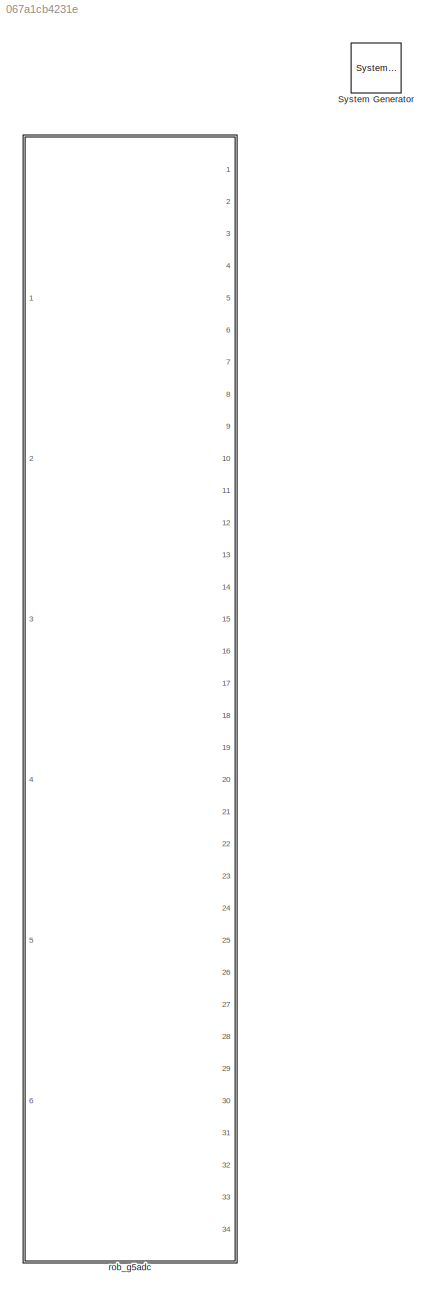
MODEL slx_067a1cb4231e
KIND model
BLOCK [Reference]  System Generator  REF=xbsIndex_r4/ System Generator
  AttributesFormatString = System\nGenerator
  Impl_file = ISE Defaults
  Ports = []
  SourceBlock = xbsIndex_r4/ System Generator
  SourceType = Xilinx System Generator Block
  Synth_file = XST Defaults
  Tag = genX
  UserDataPersistent = on
  block_type = sysgen
  clock_wrapper = Clock Enables
  core_generation = According to Block Masks
  dbl_ovrd = According to Block Masks
  dcm_input_clock_period = 10
  deprecated_control = off
  directory = ./netlist
  eval_field = 0
  has_advanced_control = 0
  incr_netlist = off
  infoedit = System Generator
  package = fbg676
  part = xc7k325t
  proj_type = Project Navigator
  run_coregen = off
  sg_icon_stat = 50,50,0,0,token,white,0,58c5b5770fe5f7c311f53dbc6e73f0f6,right,,[ ],[ ]
  sg_mask_display = fprintf('','COMMENT: begin icon graphics');\npatch([0 50 50 0 0 ],[0 0 50 50 0 ],[1 1 1 ]);\npatch([1.6375 16.81 27.31 37.81 48.31 27.31 12.1375 1.6375 ],[36.655 36.655 47.155 36.655 47.155 47.155 47.155 36.655 ],[0.933333 0.203922 0.141176 ]);\npatch([12.1375 27.31 16.81 1.6375 12.1375 ],[26.155 26.155 36.655 36.655 26.155 ],[0.698039 0.0313725 0.219608 ]);\npatch([1.6375 16.81 27.31 12.1375 1.6375 ]...<+327ch>
  sggui_pos = -1,-1,-1,-1
  simulink_period = 1
  speed = -3
  synthesis_tool = XST
  sysclk_period = 10
  testbench = off
  trim_vbits = Everywhere in SubSystem
  xilinxfamily = Kintex7
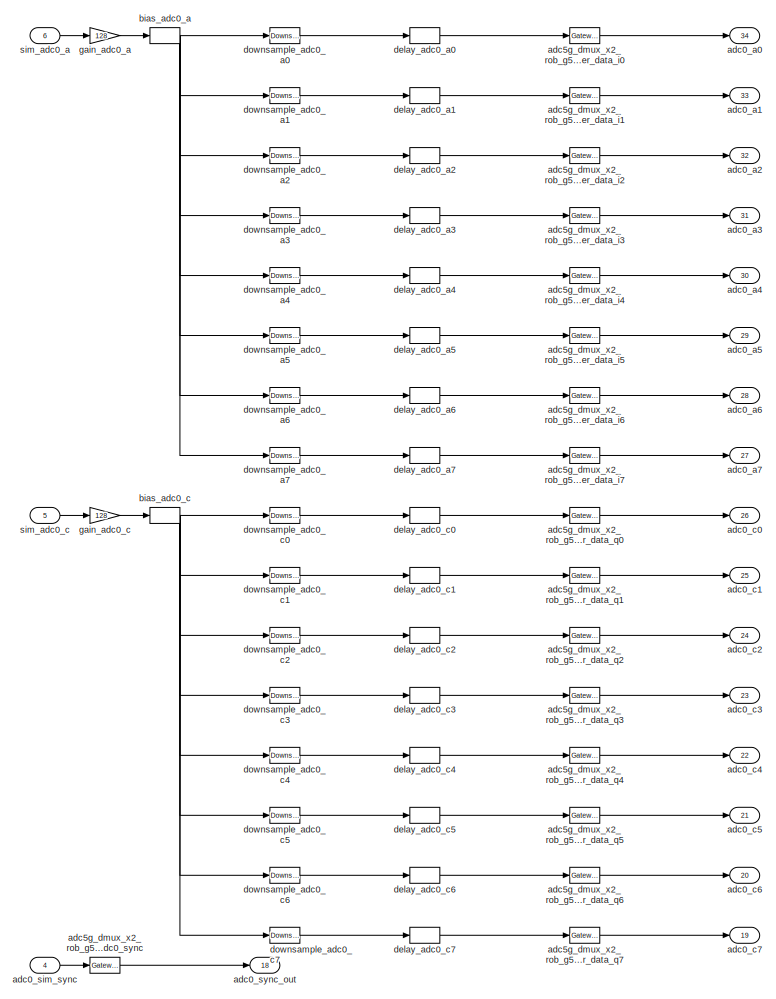
[diagram: rob_g5adc - part 1/2, full width, top band]
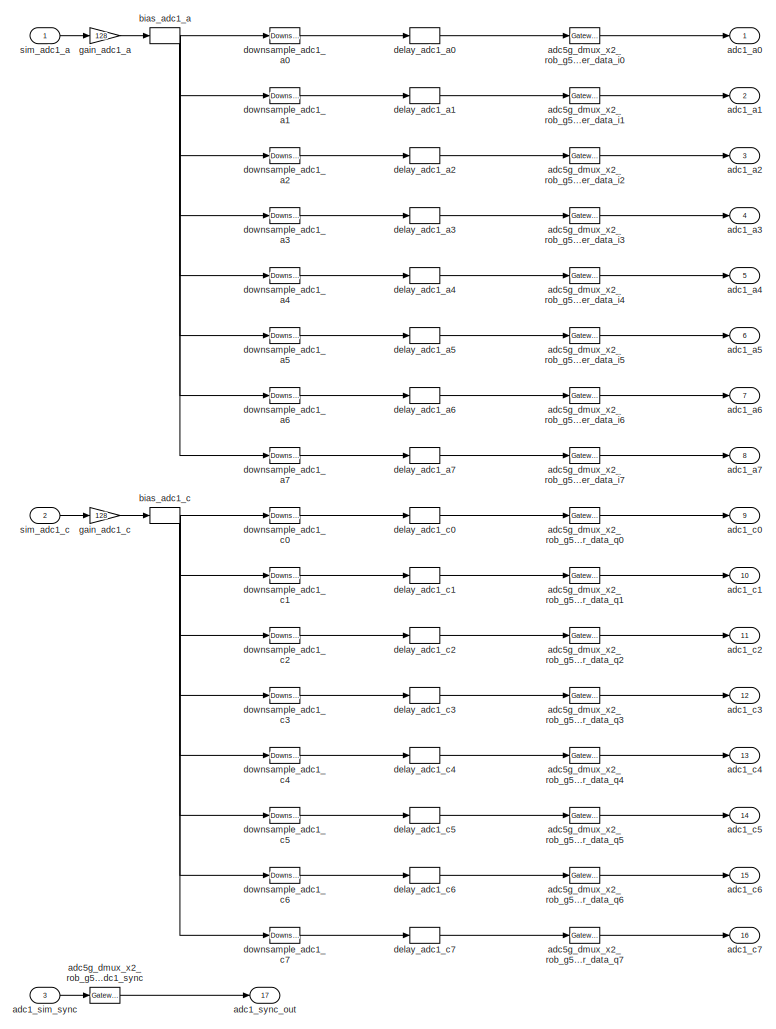
[diagram: rob_g5adc - part 2/2, full width, bottom band]
BLOCK [SubSystem] rob_g5adc
  FunctionWithSeparateData = off
  MaskHideContents = off
  MinAlgLoopOccurrences = off
  Opaque = off
  Ports = [6, 34]
  PropExecContextOutsideSubsystem = off
  RTWSystemCode = Auto
  RequestExecContextInheritance = off
  Tag = xps:adc5g_dmux_x2
  UserDataPersistent = on
BLOCK [Outport] rob_g5adc/adc0_a0
  IconDisplay = Port number
  Port = 34
BLOCK [Outport] rob_g5adc/adc0_a1
  IconDisplay = Port number
  Port = 33
BLOCK [Outport] rob_g5adc/adc0_a2
  IconDisplay = Port number
  Port = 32
BLOCK [Outport] rob_g5adc/adc0_a3
  IconDisplay = Port number
  Port = 31
BLOCK [Outport] rob_g5adc/adc0_a4
  IconDisplay = Port number
  Port = 30
BLOCK [Outport] rob_g5adc/adc0_a5
  IconDisplay = Port number
  Port = 29
BLOCK [Outport] rob_g5adc/adc0_a6
  IconDisplay = Port number
  Port = 28
BLOCK [Outport] rob_g5adc/adc0_a7
  IconDisplay = Port number
  Port = 27
BLOCK [Outport] rob_g5adc/adc0_c0
  IconDisplay = Port number
  Port = 26
BLOCK [Outport] rob_g5adc/adc0_c1
  IconDisplay = Port number
  Port = 25
BLOCK [Outport] rob_g5adc/adc0_c2
  IconDisplay = Port number
  Port = 24
BLOCK [Outport] rob_g5adc/adc0_c3
  IconDisplay = Port number
  Port = 23
BLOCK [Outport] rob_g5adc/adc0_c4
  IconDisplay = Port number
  Port = 22
BLOCK [Outport] rob_g5adc/adc0_c5
  IconDisplay = Port number
  Port = 21
BLOCK [Outport] rob_g5adc/adc0_c6
  IconDisplay = Port number
  Port = 20
BLOCK [Outport] rob_g5adc/adc0_c7
  IconDisplay = Port number
  Port = 19
BLOCK [Inport] rob_g5adc/adc0_sim_sync
  IconDisplay = Port number
  Port = 4
BLOCK [Outport] rob_g5adc/adc0_sync_out
  IconDisplay = Port number
  Port = 18
BLOCK [Outport] rob_g5adc/adc1_a0
  IconDisplay = Port number
BLOCK [Outport] rob_g5adc/adc1_a1
  IconDisplay = Port number
  Port = 2
BLOCK [Outport] rob_g5adc/adc1_a2
  IconDisplay = Port number
  Port = 3
BLOCK [Outport] rob_g5adc/adc1_a3
  IconDisplay = Port number
  Port = 4
BLOCK [Outport] rob_g5adc/adc1_a4
  IconDisplay = Port number
  Port = 5
BLOCK [Outport] rob_g5adc/adc1_a5
  IconDisplay = Port number
  Port = 6
BLOCK [Outport] rob_g5adc/adc1_a6
  IconDisplay = Port number
  Port = 7
BLOCK [Outport] rob_g5adc/adc1_a7
  IconDisplay = Port number
  Port = 8
BLOCK [Outport] rob_g5adc/adc1_c0
  IconDisplay = Port number
  Port = 9
BLOCK [Outport] rob_g5adc/adc1_c1
  IconDisplay = Port number
  Port = 10
BLOCK [Outport] rob_g5adc/adc1_c2
  IconDisplay = Port number
  Port = 11
BLOCK [Outport] rob_g5adc/adc1_c3
  IconDisplay = Port number
  Port = 12
BLOCK [Outport] rob_g5adc/adc1_c4
  IconDisplay = Port number
  Port = 13
BLOCK [Outport] rob_g5adc/adc1_c5
  IconDisplay = Port number
  Port = 14
BLOCK [Outport] rob_g5adc/adc1_c6
  IconDisplay = Port number
  Port = 15
BLOCK [Outport] rob_g5adc/adc1_c7
  IconDisplay = Port number
  Port = 16
BLOCK [Inport] rob_g5adc/adc1_sim_sync
  IconDisplay = Port number
  Port = 3
BLOCK [Outport] rob_g5adc/adc1_sync_out
  IconDisplay = Port number
  Port = 17
BLOCK [Reference] rob_g5adc/adc5g_dmux_x2_rob_g5adc_adc0_sync  REF=xbsIndex_r4/Gateway In
  ADCChannel = '1'
  LOCs = {}
  Ports = [1, 1]
  SourceBlock = xbsIndex_r4/Gateway In
  SourceType = Xilinx Gateway In Block
  UseAsADC = off
  arith_type = Boolean
  bin_pt = 14
  block_type = gatewayin
  dbl_ovrd = off
  exp_width = 8
  frac_width = 24
  gui_display_data_type = Fixed-point
  has_advanced_control = 0
  hdl_port = on
  infoedit = Gateway in block.  Converts inputs of type Simulink integer, single, double and fixed-point to  Xilinx fixed-point or floating-point data type.<br><br>Hardware notes:  In hardware these blocks become top level input ports.  <repeated x34 — deduplicated; at blocks: adc5g_dmux_x2_rob_g5adc_adc0_sync, adc5g_dmux_x2_rob_g5adc_adc0_user_data_i0, adc5g_dmux_x2_rob_g5adc_adc0_user_data_i1, adc5g_dmux_x2_rob_g5adc_adc0_user_data_i2, adc5g_dmux_x2_rob_g5adc_adc0_user_data_i3, adc5g_dmux_x2_rob_g5adc_adc0_user_data_i4, adc5g_dmux_x2_rob_g5adc_adc0_user_data_i5, adc5g_dmux_x2_rob_g5adc_adc0_user_data_i6, adc5g_dmux_x2_rob_g5adc_adc0_user_data_i7, adc5g_dmux_x2_rob_g5adc_adc0_user_data_q0, adc5g_dmux_x2_rob_g5adc_adc0_user_data_q1, adc5g_dmux_x2_rob_g5adc_adc0_user_data_q2, adc5g_dmux_x2_rob_g5adc_adc0_user_data_q3, adc5g_dmux_x2_rob_g5adc_adc0_user_data_q4, adc5g_dmux_x2_rob_g5adc_adc0_user_data_q5, adc5g_dmux_x2_rob_g5adc_adc0_user_data_q6, +18 more>
  inherit_from_input = off
  locs_specified = off
  n_bits = 16
  overflow = Saturate
  period = 1
  preci_type = Single
  quantization = Round  (unbiased: +/- Inf)
  sg_icon_stat = 30,16,1,1,white,yellow,1,00d3666e,right,,[ ],[ ]
  sg_mask_display = fprintf('','COMMENT: begin icon graphics');\npatch([0 30 30 0 0 ],[0 0 16 16 0 ],[0.95 0.93 0.65 ]);\nplot([0 30 30 0 0 ],[0 0 16 16 0 ]);\npatch([10.55 13.44 15.44 17.44 19.44 15.44 12.55 10.55 ],[10.22 10.22 12.22 10.22 12.22 12.22 12.22 10.22 ],[1 1 1 ]);\npatch([12.55 15.44 13.44 10.55 12.55 ],[8.22 8.22 10.22 10.22 8.22 ],[0.985 0.979 0.895 ]);\npatch([10.55 13.44 15.44 12.55 10.55 ],[6.22 6.22 8....<+378ch>  <repeated x34 — deduplicated; at blocks: adc5g_dmux_x2_rob_g5adc_adc0_sync, adc5g_dmux_x2_rob_g5adc_adc0_user_data_i0, adc5g_dmux_x2_rob_g5adc_adc0_user_data_i1, adc5g_dmux_x2_rob_g5adc_adc0_user_data_i2, adc5g_dmux_x2_rob_g5adc_adc0_user_data_i3, adc5g_dmux_x2_rob_g5adc_adc0_user_data_i4, adc5g_dmux_x2_rob_g5adc_adc0_user_data_i5, adc5g_dmux_x2_rob_g5adc_adc0_user_data_i6, adc5g_dmux_x2_rob_g5adc_adc0_user_data_i7, adc5g_dmux_x2_rob_g5adc_adc0_user_data_q0, adc5g_dmux_x2_rob_g5adc_adc0_user_data_q1, adc5g_dmux_x2_rob_g5adc_adc0_user_data_q2, adc5g_dmux_x2_rob_g5adc_adc0_user_data_q3, adc5g_dmux_x2_rob_g5adc_adc0_user_data_q4, adc5g_dmux_x2_rob_g5adc_adc0_user_data_q5, adc5g_dmux_x2_rob_g5adc_adc0_user_data_q6, +18 more>
  sggui_pos = -1,-1,-1,-1
  timing_constraint = None
  xl_area = [0,0,0,0,0,0,0]
  xl_use_area = off
BLOCK [Reference] rob_g5adc/adc5g_dmux_x2_rob_g5adc_adc0_user_data_i0  REF=xbsIndex_r4/Gateway In
  ADCChannel = '1'
  LOCs = {}
  Ports = [1, 1]
  SourceBlock = xbsIndex_r4/Gateway In
  SourceType = Xilinx Gateway In Block
  UseAsADC = off
  arith_type = Unsigned
  bin_pt = 0
  block_type = gatewayin
  dbl_ovrd = off
  exp_width = 8
  frac_width = 24
  gui_display_data_type = Fixed-point
  has_advanced_control = 0
  hdl_port = on
  inherit_from_input = off
  locs_specified = off
  n_bits = 8
  overflow = Wrap
  period = 1
  preci_type = Single
  quantization = Truncate
  sg_icon_stat = 30,16,1,1,white,yellow,1,00d3666e,right,,[ ],[ ]
  sggui_pos = -1,-1,-1,-1
  timing_constraint = None
  xl_area = [0,0,0,0,0,0,0]
  xl_use_area = off
BLOCK [Reference] rob_g5adc/adc5g_dmux_x2_rob_g5adc_adc0_user_data_i1  REF=xbsIndex_r4/Gateway In
  ADCChannel = '1'
  LOCs = {}
  Ports = [1, 1]
  SourceBlock = xbsIndex_r4/Gateway In
  SourceType = Xilinx Gateway In Block
  UseAsADC = off
  arith_type = Unsigned
  bin_pt = 0
  block_type = gatewayin
  dbl_ovrd = off
  exp_width = 8
  frac_width = 24
  gui_display_data_type = Fixed-point
  has_advanced_control = 0
  hdl_port = on
  inherit_from_input = off
  locs_specified = off
  n_bits = 8
  overflow = Wrap
  period = 1
  preci_type = Single
  quantization = Truncate
  sg_icon_stat = 30,16,1,1,white,yellow,1,00d3666e,right,,[ ],[ ]
  sggui_pos = -1,-1,-1,-1
  timing_constraint = None
  xl_area = [0,0,0,0,0,0,0]
  xl_use_area = off
BLOCK [Reference] rob_g5adc/adc5g_dmux_x2_rob_g5adc_adc0_user_data_i2  REF=xbsIndex_r4/Gateway In
  ADCChannel = '1'
  LOCs = {}
  Ports = [1, 1]
  SourceBlock = xbsIndex_r4/Gateway In
  SourceType = Xilinx Gateway In Block
  UseAsADC = off
  arith_type = Unsigned
  bin_pt = 0
  block_type = gatewayin
  dbl_ovrd = off
  exp_width = 8
  frac_width = 24
  gui_display_data_type = Fixed-point
  has_advanced_control = 0
  hdl_port = on
  inherit_from_input = off
  locs_specified = off
  n_bits = 8
  overflow = Wrap
  period = 1
  preci_type = Single
  quantization = Truncate
  sg_icon_stat = 30,16,1,1,white,yellow,1,00d3666e,right,,[ ],[ ]
  sggui_pos = -1,-1,-1,-1
  timing_constraint = None
  xl_area = [0,0,0,0,0,0,0]
  xl_use_area = off
BLOCK [Reference] rob_g5adc/adc5g_dmux_x2_rob_g5adc_adc0_user_data_i3  REF=xbsIndex_r4/Gateway In
  ADCChannel = '1'
  LOCs = {}
  Ports = [1, 1]
  SourceBlock = xbsIndex_r4/Gateway In
  SourceType = Xilinx Gateway In Block
  UseAsADC = off
  arith_type = Unsigned
  bin_pt = 0
  block_type = gatewayin
  dbl_ovrd = off
  exp_width = 8
  frac_width = 24
  gui_display_data_type = Fixed-point
  has_advanced_control = 0
  hdl_port = on
  inherit_from_input = off
  locs_specified = off
  n_bits = 8
  overflow = Wrap
  period = 1
  preci_type = Single
  quantization = Truncate
  sg_icon_stat = 30,16,1,1,white,yellow,1,00d3666e,right,,[ ],[ ]
  sggui_pos = -1,-1,-1,-1
  timing_constraint = None
  xl_area = [0,0,0,0,0,0,0]
  xl_use_area = off
BLOCK [Reference] rob_g5adc/adc5g_dmux_x2_rob_g5adc_adc0_user_data_i4  REF=xbsIndex_r4/Gateway In
  ADCChannel = '1'
  LOCs = {}
  Ports = [1, 1]
  SourceBlock = xbsIndex_r4/Gateway In
  SourceType = Xilinx Gateway In Block
  UseAsADC = off
  arith_type = Unsigned
  bin_pt = 0
  block_type = gatewayin
  dbl_ovrd = off
  exp_width = 8
  frac_width = 24
  gui_display_data_type = Fixed-point
  has_advanced_control = 0
  hdl_port = on
  inherit_from_input = off
  locs_specified = off
  n_bits = 8
  overflow = Wrap
  period = 1
  preci_type = Single
  quantization = Truncate
  sg_icon_stat = 30,16,1,1,white,yellow,1,00d3666e,right,,[ ],[ ]
  sggui_pos = -1,-1,-1,-1
  timing_constraint = None
  xl_area = [0,0,0,0,0,0,0]
  xl_use_area = off
BLOCK [Reference] rob_g5adc/adc5g_dmux_x2_rob_g5adc_adc0_user_data_i5  REF=xbsIndex_r4/Gateway In
  ADCChannel = '1'
  LOCs = {}
  Ports = [1, 1]
  SourceBlock = xbsIndex_r4/Gateway In
  SourceType = Xilinx Gateway In Block
  UseAsADC = off
  arith_type = Unsigned
  bin_pt = 0
  block_type = gatewayin
  dbl_ovrd = off
  exp_width = 8
  frac_width = 24
  gui_display_data_type = Fixed-point
  has_advanced_control = 0
  hdl_port = on
  inherit_from_input = off
  locs_specified = off
  n_bits = 8
  overflow = Wrap
  period = 1
  preci_type = Single
  quantization = Truncate
  sg_icon_stat = 30,16,1,1,white,yellow,1,00d3666e,right,,[ ],[ ]
  sggui_pos = -1,-1,-1,-1
  timing_constraint = None
  xl_area = [0,0,0,0,0,0,0]
  xl_use_area = off
BLOCK [Reference] rob_g5adc/adc5g_dmux_x2_rob_g5adc_adc0_user_data_i6  REF=xbsIndex_r4/Gateway In
  ADCChannel = '1'
  LOCs = {}
  Ports = [1, 1]
  SourceBlock = xbsIndex_r4/Gateway In
  SourceType = Xilinx Gateway In Block
  UseAsADC = off
  arith_type = Unsigned
  bin_pt = 0
  block_type = gatewayin
  dbl_ovrd = off
  exp_width = 8
  frac_width = 24
  gui_display_data_type = Fixed-point
  has_advanced_control = 0
  hdl_port = on
  inherit_from_input = off
  locs_specified = off
  n_bits = 8
  overflow = Wrap
  period = 1
  preci_type = Single
  quantization = Truncate
  sg_icon_stat = 30,16,1,1,white,yellow,1,00d3666e,right,,[ ],[ ]
  sggui_pos = -1,-1,-1,-1
  timing_constraint = None
  xl_area = [0,0,0,0,0,0,0]
  xl_use_area = off
BLOCK [Reference] rob_g5adc/adc5g_dmux_x2_rob_g5adc_adc0_user_data_i7  REF=xbsIndex_r4/Gateway In
  ADCChannel = '1'
  LOCs = {}
  Ports = [1, 1]
  SourceBlock = xbsIndex_r4/Gateway In
  SourceType = Xilinx Gateway In Block
  UseAsADC = off
  arith_type = Unsigned
  bin_pt = 0
  block_type = gatewayin
  dbl_ovrd = off
  exp_width = 8
  frac_width = 24
  gui_display_data_type = Fixed-point
  has_advanced_control = 0
  hdl_port = on
  inherit_from_input = off
  locs_specified = off
  n_bits = 8
  overflow = Wrap
  period = 1
  preci_type = Single
  quantization = Truncate
  sg_icon_stat = 30,16,1,1,white,yellow,1,00d3666e,right,,[ ],[ ]
  sggui_pos = -1,-1,-1,-1
  timing_constraint = None
  xl_area = [0,0,0,0,0,0,0]
  xl_use_area = off
BLOCK [Reference] rob_g5adc/adc5g_dmux_x2_rob_g5adc_adc0_user_data_q0  REF=xbsIndex_r4/Gateway In
  ADCChannel = '1'
  LOCs = {}
  Ports = [1, 1]
  SourceBlock = xbsIndex_r4/Gateway In
  SourceType = Xilinx Gateway In Block
  UseAsADC = off
  arith_type = Unsigned
  bin_pt = 0
  block_type = gatewayin
  dbl_ovrd = off
  exp_width = 8
  frac_width = 24
  gui_display_data_type = Fixed-point
  has_advanced_control = 0
  hdl_port = on
  inherit_from_input = off
  locs_specified = off
  n_bits = 8
  overflow = Wrap
  period = 1
  preci_type = Single
  quantization = Truncate
  sg_icon_stat = 30,16,1,1,white,yellow,1,00d3666e,right,,[ ],[ ]
  sggui_pos = -1,-1,-1,-1
  timing_constraint = None
  xl_area = [0,0,0,0,0,0,0]
  xl_use_area = off
BLOCK [Reference] rob_g5adc/adc5g_dmux_x2_rob_g5adc_adc0_user_data_q1  REF=xbsIndex_r4/Gateway In
  ADCChannel = '1'
  LOCs = {}
  Ports = [1, 1]
  SourceBlock = xbsIndex_r4/Gateway In
  SourceType = Xilinx Gateway In Block
  UseAsADC = off
  arith_type = Unsigned
  bin_pt = 0
  block_type = gatewayin
  dbl_ovrd = off
  exp_width = 8
  frac_width = 24
  gui_display_data_type = Fixed-point
  has_advanced_control = 0
  hdl_port = on
  inherit_from_input = off
  locs_specified = off
  n_bits = 8
  overflow = Wrap
  period = 1
  preci_type = Single
  quantization = Truncate
  sg_icon_stat = 30,16,1,1,white,yellow,1,00d3666e,right,,[ ],[ ]
  sggui_pos = -1,-1,-1,-1
  timing_constraint = None
  xl_area = [0,0,0,0,0,0,0]
  xl_use_area = off
BLOCK [Reference] rob_g5adc/adc5g_dmux_x2_rob_g5adc_adc0_user_data_q2  REF=xbsIndex_r4/Gateway In
  ADCChannel = '1'
  LOCs = {}
  Ports = [1, 1]
  SourceBlock = xbsIndex_r4/Gateway In
  SourceType = Xilinx Gateway In Block
  UseAsADC = off
  arith_type = Unsigned
  bin_pt = 0
  block_type = gatewayin
  dbl_ovrd = off
  exp_width = 8
  frac_width = 24
  gui_display_data_type = Fixed-point
  has_advanced_control = 0
  hdl_port = on
  inherit_from_input = off
  locs_specified = off
  n_bits = 8
  overflow = Wrap
  period = 1
  preci_type = Single
  quantization = Truncate
  sg_icon_stat = 30,16,1,1,white,yellow,1,00d3666e,right,,[ ],[ ]
  sggui_pos = -1,-1,-1,-1
  timing_constraint = None
  xl_area = [0,0,0,0,0,0,0]
  xl_use_area = off
BLOCK [Reference] rob_g5adc/adc5g_dmux_x2_rob_g5adc_adc0_user_data_q3  REF=xbsIndex_r4/Gateway In
  ADCChannel = '1'
  LOCs = {}
  Ports = [1, 1]
  SourceBlock = xbsIndex_r4/Gateway In
  SourceType = Xilinx Gateway In Block
  UseAsADC = off
  arith_type = Unsigned
  bin_pt = 0
  block_type = gatewayin
  dbl_ovrd = off
  exp_width = 8
  frac_width = 24
  gui_display_data_type = Fixed-point
  has_advanced_control = 0
  hdl_port = on
  inherit_from_input = off
  locs_specified = off
  n_bits = 8
  overflow = Wrap
  period = 1
  preci_type = Single
  quantization = Truncate
  sg_icon_stat = 30,16,1,1,white,yellow,1,00d3666e,right,,[ ],[ ]
  sggui_pos = -1,-1,-1,-1
  timing_constraint = None
  xl_area = [0,0,0,0,0,0,0]
  xl_use_area = off
BLOCK [Reference] rob_g5adc/adc5g_dmux_x2_rob_g5adc_adc0_user_data_q4  REF=xbsIndex_r4/Gateway In
  ADCChannel = '1'
  LOCs = {}
  Ports = [1, 1]
  SourceBlock = xbsIndex_r4/Gateway In
  SourceType = Xilinx Gateway In Block
  UseAsADC = off
  arith_type = Unsigned
  bin_pt = 0
  block_type = gatewayin
  dbl_ovrd = off
  exp_width = 8
  frac_width = 24
  gui_display_data_type = Fixed-point
  has_advanced_control = 0
  hdl_port = on
  inherit_from_input = off
  locs_specified = off
  n_bits = 8
  overflow = Wrap
  period = 1
  preci_type = Single
  quantization = Truncate
  sg_icon_stat = 30,16,1,1,white,yellow,1,00d3666e,right,,[ ],[ ]
  sggui_pos = -1,-1,-1,-1
  timing_constraint = None
  xl_area = [0,0,0,0,0,0,0]
  xl_use_area = off
BLOCK [Reference] rob_g5adc/adc5g_dmux_x2_rob_g5adc_adc0_user_data_q5  REF=xbsIndex_r4/Gateway In
  ADCChannel = '1'
  LOCs = {}
  Ports = [1, 1]
  SourceBlock = xbsIndex_r4/Gateway In
  SourceType = Xilinx Gateway In Block
  UseAsADC = off
  arith_type = Unsigned
  bin_pt = 0
  block_type = gatewayin
  dbl_ovrd = off
  exp_width = 8
  frac_width = 24
  gui_display_data_type = Fixed-point
  has_advanced_control = 0
  hdl_port = on
  inherit_from_input = off
  locs_specified = off
  n_bits = 8
  overflow = Wrap
  period = 1
  preci_type = Single
  quantization = Truncate
  sg_icon_stat = 30,16,1,1,white,yellow,1,00d3666e,right,,[ ],[ ]
  sggui_pos = -1,-1,-1,-1
  timing_constraint = None
  xl_area = [0,0,0,0,0,0,0]
  xl_use_area = off
BLOCK [Reference] rob_g5adc/adc5g_dmux_x2_rob_g5adc_adc0_user_data_q6  REF=xbsIndex_r4/Gateway In
  ADCChannel = '1'
  LOCs = {}
  Ports = [1, 1]
  SourceBlock = xbsIndex_r4/Gateway In
  SourceType = Xilinx Gateway In Block
  UseAsADC = off
  arith_type = Unsigned
  bin_pt = 0
  block_type = gatewayin
  dbl_ovrd = off
  exp_width = 8
  frac_width = 24
  gui_display_data_type = Fixed-point
  has_advanced_control = 0
  hdl_port = on
  inherit_from_input = off
  locs_specified = off
  n_bits = 8
  overflow = Wrap
  period = 1
  preci_type = Single
  quantization = Truncate
  sg_icon_stat = 30,16,1,1,white,yellow,1,00d3666e,right,,[ ],[ ]
  sggui_pos = -1,-1,-1,-1
  timing_constraint = None
  xl_area = [0,0,0,0,0,0,0]
  xl_use_area = off
BLOCK [Reference] rob_g5adc/adc5g_dmux_x2_rob_g5adc_adc0_user_data_q7  REF=xbsIndex_r4/Gateway In
  ADCChannel = '1'
  LOCs = {}
  Ports = [1, 1]
  SourceBlock = xbsIndex_r4/Gateway In
  SourceType = Xilinx Gateway In Block
  UseAsADC = off
  arith_type = Unsigned
  bin_pt = 0
  block_type = gatewayin
  dbl_ovrd = off
  exp_width = 8
  frac_width = 24
  gui_display_data_type = Fixed-point
  has_advanced_control = 0
  hdl_port = on
  inherit_from_input = off
  locs_specified = off
  n_bits = 8
  overflow = Wrap
  period = 1
  preci_type = Single
  quantization = Truncate
  sg_icon_stat = 30,16,1,1,white,yellow,1,00d3666e,right,,[ ],[ ]
  sggui_pos = -1,-1,-1,-1
  timing_constraint = None
  xl_area = [0,0,0,0,0,0,0]
  xl_use_area = off
BLOCK [Reference] rob_g5adc/adc5g_dmux_x2_rob_g5adc_adc1_sync  REF=xbsIndex_r4/Gateway In
  ADCChannel = '1'
  LOCs = {}
  Ports = [1, 1]
  SourceBlock = xbsIndex_r4/Gateway In
  SourceType = Xilinx Gateway In Block
  UseAsADC = off
  arith_type = Boolean
  bin_pt = 14
  block_type = gatewayin
  dbl_ovrd = off
  exp_width = 8
  frac_width = 24
  gui_display_data_type = Fixed-point
  has_advanced_control = 0
  hdl_port = on
  inherit_from_input = off
  locs_specified = off
  n_bits = 16
  overflow = Saturate
  period = 1
  preci_type = Single
  quantization = Round  (unbiased: +/- Inf)
  sg_icon_stat = 30,16,1,1,white,yellow,1,00d3666e,right,,[ ],[ ]
  sggui_pos = -1,-1,-1,-1
  timing_constraint = None
  xl_area = [0,0,0,0,0,0,0]
  xl_use_area = off
BLOCK [Reference] rob_g5adc/adc5g_dmux_x2_rob_g5adc_adc1_user_data_i0  REF=xbsIndex_r4/Gateway In
  ADCChannel = '1'
  LOCs = {}
  Ports = [1, 1]
  SourceBlock = xbsIndex_r4/Gateway In
  SourceType = Xilinx Gateway In Block
  UseAsADC = off
  arith_type = Unsigned
  bin_pt = 0
  block_type = gatewayin
  dbl_ovrd = off
  exp_width = 8
  frac_width = 24
  gui_display_data_type = Fixed-point
  has_advanced_control = 0
  hdl_port = on
  inherit_from_input = off
  locs_specified = off
  n_bits = 8
  overflow = Wrap
  period = 1
  preci_type = Single
  quantization = Truncate
  sg_icon_stat = 30,16,1,1,white,yellow,1,00d3666e,right,,[ ],[ ]
  sggui_pos = -1,-1,-1,-1
  timing_constraint = None
  xl_area = [0,0,0,0,0,0,0]
  xl_use_area = off
BLOCK [Reference] rob_g5adc/adc5g_dmux_x2_rob_g5adc_adc1_user_data_i1  REF=xbsIndex_r4/Gateway In
  ADCChannel = '1'
  LOCs = {}
  Ports = [1, 1]
  SourceBlock = xbsIndex_r4/Gateway In
  SourceType = Xilinx Gateway In Block
  UseAsADC = off
  arith_type = Unsigned
  bin_pt = 0
  block_type = gatewayin
  dbl_ovrd = off
  exp_width = 8
  frac_width = 24
  gui_display_data_type = Fixed-point
  has_advanced_control = 0
  hdl_port = on
  inherit_from_input = off
  locs_specified = off
  n_bits = 8
  overflow = Wrap
  period = 1
  preci_type = Single
  quantization = Truncate
  sg_icon_stat = 30,16,1,1,white,yellow,1,00d3666e,right,,[ ],[ ]
  sggui_pos = -1,-1,-1,-1
  timing_constraint = None
  xl_area = [0,0,0,0,0,0,0]
  xl_use_area = off
BLOCK [Reference] rob_g5adc/adc5g_dmux_x2_rob_g5adc_adc1_user_data_i2  REF=xbsIndex_r4/Gateway In
  ADCChannel = '1'
  LOCs = {}
  Ports = [1, 1]
  SourceBlock = xbsIndex_r4/Gateway In
  SourceType = Xilinx Gateway In Block
  UseAsADC = off
  arith_type = Unsigned
  bin_pt = 0
  block_type = gatewayin
  dbl_ovrd = off
  exp_width = 8
  frac_width = 24
  gui_display_data_type = Fixed-point
  has_advanced_control = 0
  hdl_port = on
  inherit_from_input = off
  locs_specified = off
  n_bits = 8
  overflow = Wrap
  period = 1
  preci_type = Single
  quantization = Truncate
  sg_icon_stat = 30,16,1,1,white,yellow,1,00d3666e,right,,[ ],[ ]
  sggui_pos = -1,-1,-1,-1
  timing_constraint = None
  xl_area = [0,0,0,0,0,0,0]
  xl_use_area = off
BLOCK [Reference] rob_g5adc/adc5g_dmux_x2_rob_g5adc_adc1_user_data_i3  REF=xbsIndex_r4/Gateway In
  ADCChannel = '1'
  LOCs = {}
  Ports = [1, 1]
  SourceBlock = xbsIndex_r4/Gateway In
  SourceType = Xilinx Gateway In Block
  UseAsADC = off
  arith_type = Unsigned
  bin_pt = 0
  block_type = gatewayin
  dbl_ovrd = off
  exp_width = 8
  frac_width = 24
  gui_display_data_type = Fixed-point
  has_advanced_control = 0
  hdl_port = on
  inherit_from_input = off
  locs_specified = off
  n_bits = 8
  overflow = Wrap
  period = 1
  preci_type = Single
  quantization = Truncate
  sg_icon_stat = 30,16,1,1,white,yellow,1,00d3666e,right,,[ ],[ ]
  sggui_pos = -1,-1,-1,-1
  timing_constraint = None
  xl_area = [0,0,0,0,0,0,0]
  xl_use_area = off
BLOCK [Reference] rob_g5adc/adc5g_dmux_x2_rob_g5adc_adc1_user_data_i4  REF=xbsIndex_r4/Gateway In
  ADCChannel = '1'
  LOCs = {}
  Ports = [1, 1]
  SourceBlock = xbsIndex_r4/Gateway In
  SourceType = Xilinx Gateway In Block
  UseAsADC = off
  arith_type = Unsigned
  bin_pt = 0
  block_type = gatewayin
  dbl_ovrd = off
  exp_width = 8
  frac_width = 24
  gui_display_data_type = Fixed-point
  has_advanced_control = 0
  hdl_port = on
  inherit_from_input = off
  locs_specified = off
  n_bits = 8
  overflow = Wrap
  period = 1
  preci_type = Single
  quantization = Truncate
  sg_icon_stat = 30,16,1,1,white,yellow,1,00d3666e,right,,[ ],[ ]
  sggui_pos = -1,-1,-1,-1
  timing_constraint = None
  xl_area = [0,0,0,0,0,0,0]
  xl_use_area = off
BLOCK [Reference] rob_g5adc/adc5g_dmux_x2_rob_g5adc_adc1_user_data_i5  REF=xbsIndex_r4/Gateway In
  ADCChannel = '1'
  LOCs = {}
  Ports = [1, 1]
  SourceBlock = xbsIndex_r4/Gateway In
  SourceType = Xilinx Gateway In Block
  UseAsADC = off
  arith_type = Unsigned
  bin_pt = 0
  block_type = gatewayin
  dbl_ovrd = off
  exp_width = 8
  frac_width = 24
  gui_display_data_type = Fixed-point
  has_advanced_control = 0
  hdl_port = on
  inherit_from_input = off
  locs_specified = off
  n_bits = 8
  overflow = Wrap
  period = 1
  preci_type = Single
  quantization = Truncate
  sg_icon_stat = 30,16,1,1,white,yellow,1,00d3666e,right,,[ ],[ ]
  sggui_pos = -1,-1,-1,-1
  timing_constraint = None
  xl_area = [0,0,0,0,0,0,0]
  xl_use_area = off
BLOCK [Reference] rob_g5adc/adc5g_dmux_x2_rob_g5adc_adc1_user_data_i6  REF=xbsIndex_r4/Gateway In
  ADCChannel = '1'
  LOCs = {}
  Ports = [1, 1]
  SourceBlock = xbsIndex_r4/Gateway In
  SourceType = Xilinx Gateway In Block
  UseAsADC = off
  arith_type = Unsigned
  bin_pt = 0
  block_type = gatewayin
  dbl_ovrd = off
  exp_width = 8
  frac_width = 24
  gui_display_data_type = Fixed-point
  has_advanced_control = 0
  hdl_port = on
  inherit_from_input = off
  locs_specified = off
  n_bits = 8
  overflow = Wrap
  period = 1
  preci_type = Single
  quantization = Truncate
  sg_icon_stat = 30,16,1,1,white,yellow,1,00d3666e,right,,[ ],[ ]
  sggui_pos = -1,-1,-1,-1
  timing_constraint = None
  xl_area = [0,0,0,0,0,0,0]
  xl_use_area = off
BLOCK [Reference] rob_g5adc/adc5g_dmux_x2_rob_g5adc_adc1_user_data_i7  REF=xbsIndex_r4/Gateway In
  ADCChannel = '1'
  LOCs = {}
  Ports = [1, 1]
  SourceBlock = xbsIndex_r4/Gateway In
  SourceType = Xilinx Gateway In Block
  UseAsADC = off
  arith_type = Unsigned
  bin_pt = 0
  block_type = gatewayin
  dbl_ovrd = off
  exp_width = 8
  frac_width = 24
  gui_display_data_type = Fixed-point
  has_advanced_control = 0
  hdl_port = on
  inherit_from_input = off
  locs_specified = off
  n_bits = 8
  overflow = Wrap
  period = 1
  preci_type = Single
  quantization = Truncate
  sg_icon_stat = 30,16,1,1,white,yellow,1,00d3666e,right,,[ ],[ ]
  sggui_pos = -1,-1,-1,-1
  timing_constraint = None
  xl_area = [0,0,0,0,0,0,0]
  xl_use_area = off
BLOCK [Reference] rob_g5adc/adc5g_dmux_x2_rob_g5adc_adc1_user_data_q0  REF=xbsIndex_r4/Gateway In
  ADCChannel = '1'
  LOCs = {}
  Ports = [1, 1]
  SourceBlock = xbsIndex_r4/Gateway In
  SourceType = Xilinx Gateway In Block
  UseAsADC = off
  arith_type = Unsigned
  bin_pt = 0
  block_type = gatewayin
  dbl_ovrd = off
  exp_width = 8
  frac_width = 24
  gui_display_data_type = Fixed-point
  has_advanced_control = 0
  hdl_port = on
  inherit_from_input = off
  locs_specified = off
  n_bits = 8
  overflow = Wrap
  period = 1
  preci_type = Single
  quantization = Truncate
  sg_icon_stat = 30,16,1,1,white,yellow,1,00d3666e,right,,[ ],[ ]
  sggui_pos = -1,-1,-1,-1
  timing_constraint = None
  xl_area = [0,0,0,0,0,0,0]
  xl_use_area = off
BLOCK [Reference] rob_g5adc/adc5g_dmux_x2_rob_g5adc_adc1_user_data_q1  REF=xbsIndex_r4/Gateway In
  ADCChannel = '1'
  LOCs = {}
  Ports = [1, 1]
  SourceBlock = xbsIndex_r4/Gateway In
  SourceType = Xilinx Gateway In Block
  UseAsADC = off
  arith_type = Unsigned
  bin_pt = 0
  block_type = gatewayin
  dbl_ovrd = off
  exp_width = 8
  frac_width = 24
  gui_display_data_type = Fixed-point
  has_advanced_control = 0
  hdl_port = on
  inherit_from_input = off
  locs_specified = off
  n_bits = 8
  overflow = Wrap
  period = 1
  preci_type = Single
  quantization = Truncate
  sg_icon_stat = 30,16,1,1,white,yellow,1,00d3666e,right,,[ ],[ ]
  sggui_pos = -1,-1,-1,-1
  timing_constraint = None
  xl_area = [0,0,0,0,0,0,0]
  xl_use_area = off
BLOCK [Reference] rob_g5adc/adc5g_dmux_x2_rob_g5adc_adc1_user_data_q2  REF=xbsIndex_r4/Gateway In
  ADCChannel = '1'
  LOCs = {}
  Ports = [1, 1]
  SourceBlock = xbsIndex_r4/Gateway In
  SourceType = Xilinx Gateway In Block
  UseAsADC = off
  arith_type = Unsigned
  bin_pt = 0
  block_type = gatewayin
  dbl_ovrd = off
  exp_width = 8
  frac_width = 24
  gui_display_data_type = Fixed-point
  has_advanced_control = 0
  hdl_port = on
  inherit_from_input = off
  locs_specified = off
  n_bits = 8
  overflow = Wrap
  period = 1
  preci_type = Single
  quantization = Truncate
  sg_icon_stat = 30,16,1,1,white,yellow,1,00d3666e,right,,[ ],[ ]
  sggui_pos = -1,-1,-1,-1
  timing_constraint = None
  xl_area = [0,0,0,0,0,0,0]
  xl_use_area = off
BLOCK [Reference] rob_g5adc/adc5g_dmux_x2_rob_g5adc_adc1_user_data_q3  REF=xbsIndex_r4/Gateway In
  ADCChannel = '1'
  LOCs = {}
  Ports = [1, 1]
  SourceBlock = xbsIndex_r4/Gateway In
  SourceType = Xilinx Gateway In Block
  UseAsADC = off
  arith_type = Unsigned
  bin_pt = 0
  block_type = gatewayin
  dbl_ovrd = off
  exp_width = 8
  frac_width = 24
  gui_display_data_type = Fixed-point
  has_advanced_control = 0
  hdl_port = on
  inherit_from_input = off
  locs_specified = off
  n_bits = 8
  overflow = Wrap
  period = 1
  preci_type = Single
  quantization = Truncate
  sg_icon_stat = 30,16,1,1,white,yellow,1,00d3666e,right,,[ ],[ ]
  sggui_pos = -1,-1,-1,-1
  timing_constraint = None
  xl_area = [0,0,0,0,0,0,0]
  xl_use_area = off
BLOCK [Reference] rob_g5adc/adc5g_dmux_x2_rob_g5adc_adc1_user_data_q4  REF=xbsIndex_r4/Gateway In
  ADCChannel = '1'
  LOCs = {}
  Ports = [1, 1]
  SourceBlock = xbsIndex_r4/Gateway In
  SourceType = Xilinx Gateway In Block
  UseAsADC = off
  arith_type = Unsigned
  bin_pt = 0
  block_type = gatewayin
  dbl_ovrd = off
  exp_width = 8
  frac_width = 24
  gui_display_data_type = Fixed-point
  has_advanced_control = 0
  hdl_port = on
  inherit_from_input = off
  locs_specified = off
  n_bits = 8
  overflow = Wrap
  period = 1
  preci_type = Single
  quantization = Truncate
  sg_icon_stat = 30,16,1,1,white,yellow,1,00d3666e,right,,[ ],[ ]
  sggui_pos = -1,-1,-1,-1
  timing_constraint = None
  xl_area = [0,0,0,0,0,0,0]
  xl_use_area = off
BLOCK [Reference] rob_g5adc/adc5g_dmux_x2_rob_g5adc_adc1_user_data_q5  REF=xbsIndex_r4/Gateway In
  ADCChannel = '1'
  LOCs = {}
  Ports = [1, 1]
  SourceBlock = xbsIndex_r4/Gateway In
  SourceType = Xilinx Gateway In Block
  UseAsADC = off
  arith_type = Unsigned
  bin_pt = 0
  block_type = gatewayin
  dbl_ovrd = off
  exp_width = 8
  frac_width = 24
  gui_display_data_type = Fixed-point
  has_advanced_control = 0
  hdl_port = on
  inherit_from_input = off
  locs_specified = off
  n_bits = 8
  overflow = Wrap
  period = 1
  preci_type = Single
  quantization = Truncate
  sg_icon_stat = 30,16,1,1,white,yellow,1,00d3666e,right,,[ ],[ ]
  sggui_pos = -1,-1,-1,-1
  timing_constraint = None
  xl_area = [0,0,0,0,0,0,0]
  xl_use_area = off
BLOCK [Reference] rob_g5adc/adc5g_dmux_x2_rob_g5adc_adc1_user_data_q6  REF=xbsIndex_r4/Gateway In
  ADCChannel = '1'
  LOCs = {}
  Ports = [1, 1]
  SourceBlock = xbsIndex_r4/Gateway In
  SourceType = Xilinx Gateway In Block
  UseAsADC = off
  arith_type = Unsigned
  bin_pt = 0
  block_type = gatewayin
  dbl_ovrd = off
  exp_width = 8
  frac_width = 24
  gui_display_data_type = Fixed-point
  has_advanced_control = 0
  hdl_port = on
  inherit_from_input = off
  locs_specified = off
  n_bits = 8
  overflow = Wrap
  period = 1
  preci_type = Single
  quantization = Truncate
  sg_icon_stat = 30,16,1,1,white,yellow,1,00d3666e,right,,[ ],[ ]
  sggui_pos = -1,-1,-1,-1
  timing_constraint = None
  xl_area = [0,0,0,0,0,0,0]
  xl_use_area = off
BLOCK [Reference] rob_g5adc/adc5g_dmux_x2_rob_g5adc_adc1_user_data_q7  REF=xbsIndex_r4/Gateway In
  ADCChannel = '1'
  LOCs = {}
  Ports = [1, 1]
  SourceBlock = xbsIndex_r4/Gateway In
  SourceType = Xilinx Gateway In Block
  UseAsADC = off
  arith_type = Unsigned
  bin_pt = 0
  block_type = gatewayin
  dbl_ovrd = off
  exp_width = 8
  frac_width = 24
  gui_display_data_type = Fixed-point
  has_advanced_control = 0
  hdl_port = on
  inherit_from_input = off
  locs_specified = off
  n_bits = 8
  overflow = Wrap
  period = 1
  preci_type = Single
  quantization = Truncate
  sg_icon_stat = 30,16,1,1,white,yellow,1,00d3666e,right,,[ ],[ ]
  sggui_pos = -1,-1,-1,-1
  timing_constraint = None
  xl_area = [0,0,0,0,0,0,0]
  xl_use_area = off
BLOCK [Bias] rob_g5adc/bias_adc0_a
  Bias = 128
BLOCK [Bias] rob_g5adc/bias_adc0_c
  Bias = 128
BLOCK [Bias] rob_g5adc/bias_adc1_a
  Bias = 128
BLOCK [Bias] rob_g5adc/bias_adc1_c
  Bias = 128
BLOCK [Delay] rob_g5adc/delay_adc0_a0
  InitialCondition = 0
  InputPortMap = u0
  InputProcessing = Inherited
  Ports = [1, 1]
BLOCK [Delay] rob_g5adc/delay_adc0_a1
  DelayLength = 1
  InitialCondition = 0
  InputPortMap = u0
  InputProcessing = Inherited
  Ports = [1, 1]
BLOCK [Delay] rob_g5adc/delay_adc0_a2
  DelayLength = 1
  InitialCondition = 0
  InputPortMap = u0
  InputProcessing = Inherited
  Ports = [1, 1]
BLOCK [Delay] rob_g5adc/delay_adc0_a3
  DelayLength = 1
  InitialCondition = 0
  InputPortMap = u0
  InputProcessing = Inherited
  Ports = [1, 1]
BLOCK [Delay] rob_g5adc/delay_adc0_a4
  DelayLength = 1
  InitialCondition = 0
  InputPortMap = u0
  InputProcessing = Inherited
  Ports = [1, 1]
BLOCK [Delay] rob_g5adc/delay_adc0_a5
  DelayLength = 1
  InitialCondition = 0
  InputPortMap = u0
  InputProcessing = Inherited
  Ports = [1, 1]
BLOCK [Delay] rob_g5adc/delay_adc0_a6
  DelayLength = 1
  InitialCondition = 0
  InputPortMap = u0
  InputProcessing = Inherited
  Ports = [1, 1]
BLOCK [Delay] rob_g5adc/delay_adc0_a7
  DelayLength = 1
  InitialCondition = 0
  InputPortMap = u0
  InputProcessing = Inherited
  Ports = [1, 1]
BLOCK [Delay] rob_g5adc/delay_adc0_c0
  InitialCondition = 0
  InputPortMap = u0
  InputProcessing = Inherited
  Ports = [1, 1]
BLOCK [Delay] rob_g5adc/delay_adc0_c1
  DelayLength = 1
  InitialCondition = 0
  InputPortMap = u0
  InputProcessing = Inherited
  Ports = [1, 1]
BLOCK [Delay] rob_g5adc/delay_adc0_c2
  DelayLength = 1
  InitialCondition = 0
  InputPortMap = u0
  InputProcessing = Inherited
  Ports = [1, 1]
BLOCK [Delay] rob_g5adc/delay_adc0_c3
  DelayLength = 1
  InitialCondition = 0
  InputPortMap = u0
  InputProcessing = Inherited
  Ports = [1, 1]
BLOCK [Delay] rob_g5adc/delay_adc0_c4
  DelayLength = 1
  InitialCondition = 0
  InputPortMap = u0
  InputProcessing = Inherited
  Ports = [1, 1]
BLOCK [Delay] rob_g5adc/delay_adc0_c5
  DelayLength = 1
  InitialCondition = 0
  InputPortMap = u0
  InputProcessing = Inherited
  Ports = [1, 1]
BLOCK [Delay] rob_g5adc/delay_adc0_c6
  DelayLength = 1
  InitialCondition = 0
  InputPortMap = u0
  InputProcessing = Inherited
  Ports = [1, 1]
BLOCK [Delay] rob_g5adc/delay_adc0_c7
  DelayLength = 1
  InitialCondition = 0
  InputPortMap = u0
  InputProcessing = Inherited
  Ports = [1, 1]
BLOCK [Delay] rob_g5adc/delay_adc1_a0
  InitialCondition = 0
  InputPortMap = u0
  InputProcessing = Inherited
  Ports = [1, 1]
BLOCK [Delay] rob_g5adc/delay_adc1_a1
  DelayLength = 1
  InitialCondition = 0
  InputPortMap = u0
  InputProcessing = Inherited
  Ports = [1, 1]
BLOCK [Delay] rob_g5adc/delay_adc1_a2
  DelayLength = 1
  InitialCondition = 0
  InputPortMap = u0
  InputProcessing = Inherited
  Ports = [1, 1]
BLOCK [Delay] rob_g5adc/delay_adc1_a3
  DelayLength = 1
  InitialCondition = 0
  InputPortMap = u0
  InputProcessing = Inherited
  Ports = [1, 1]
BLOCK [Delay] rob_g5adc/delay_adc1_a4
  DelayLength = 1
  InitialCondition = 0
  InputPortMap = u0
  InputProcessing = Inherited
  Ports = [1, 1]
BLOCK [Delay] rob_g5adc/delay_adc1_a5
  DelayLength = 1
  InitialCondition = 0
  InputPortMap = u0
  InputProcessing = Inherited
  Ports = [1, 1]
BLOCK [Delay] rob_g5adc/delay_adc1_a6
  DelayLength = 1
  InitialCondition = 0
  InputPortMap = u0
  InputProcessing = Inherited
  Ports = [1, 1]
BLOCK [Delay] rob_g5adc/delay_adc1_a7
  DelayLength = 1
  InitialCondition = 0
  InputPortMap = u0
  InputProcessing = Inherited
  Ports = [1, 1]
BLOCK [Delay] rob_g5adc/delay_adc1_c0
  InitialCondition = 0
  InputPortMap = u0
  InputProcessing = Inherited
  Ports = [1, 1]
BLOCK [Delay] rob_g5adc/delay_adc1_c1
  DelayLength = 1
  InitialCondition = 0
  InputPortMap = u0
  InputProcessing = Inherited
  Ports = [1, 1]
BLOCK [Delay] rob_g5adc/delay_adc1_c2
  DelayLength = 1
  InitialCondition = 0
  InputPortMap = u0
  InputProcessing = Inherited
  Ports = [1, 1]
BLOCK [Delay] rob_g5adc/delay_adc1_c3
  DelayLength = 1
  InitialCondition = 0
  InputPortMap = u0
  InputProcessing = Inherited
  Ports = [1, 1]
BLOCK [Delay] rob_g5adc/delay_adc1_c4
  DelayLength = 1
  InitialCondition = 0
  InputPortMap = u0
  InputProcessing = Inherited
  Ports = [1, 1]
BLOCK [Delay] rob_g5adc/delay_adc1_c5
  DelayLength = 1
  InitialCondition = 0
  InputPortMap = u0
  InputProcessing = Inherited
  Ports = [1, 1]
BLOCK [Delay] rob_g5adc/delay_adc1_c6
  DelayLength = 1
  InitialCondition = 0
  InputPortMap = u0
  InputProcessing = Inherited
  Ports = [1, 1]
BLOCK [Delay] rob_g5adc/delay_adc1_c7
  DelayLength = 1
  InitialCondition = 0
  InputPortMap = u0
  InputProcessing = Inherited
  Ports = [1, 1]
BLOCK [Reference] rob_g5adc/downsample_adc0_a0  REF=dspsigops/Downsample
  InputProcessing = Columns as channels (frame based)
  N = 8
  Ports = [1, 1]
  RateOptions = Enforce single-rate processing
  SourceBlock = dspsigops/Downsample
  SourceType = Downsample
  UserDataPersistent = on
  fmode = Maintain input frame size
  ic = 0
  phase = 0
  smode = Allow multirate
BLOCK [Reference] rob_g5adc/downsample_adc0_a1  REF=dspsigops/Downsample
  InputProcessing = Columns as channels (frame based)
  N = 8
  Ports = [1, 1]
  RateOptions = Enforce single-rate processing
  SourceBlock = dspsigops/Downsample
  SourceType = Downsample
  UserDataPersistent = on
  fmode = Maintain input frame size
  ic = 0
  phase = 1
  smode = Allow multirate
BLOCK [Reference] rob_g5adc/downsample_adc0_a2  REF=dspsigops/Downsample
  InputProcessing = Columns as channels (frame based)
  N = 8
  Ports = [1, 1]
  RateOptions = Enforce single-rate processing
  SourceBlock = dspsigops/Downsample
  SourceType = Downsample
  UserDataPersistent = on
  fmode = Maintain input frame size
  ic = 0
  phase = 2
  smode = Allow multirate
BLOCK [Reference] rob_g5adc/downsample_adc0_a3  REF=dspsigops/Downsample
  InputProcessing = Columns as channels (frame based)
  N = 8
  Ports = [1, 1]
  RateOptions = Enforce single-rate processing
  SourceBlock = dspsigops/Downsample
  SourceType = Downsample
  UserDataPersistent = on
  fmode = Maintain input frame size
  ic = 0
  phase = 3
  smode = Allow multirate
BLOCK [Reference] rob_g5adc/downsample_adc0_a4  REF=dspsigops/Downsample
  InputProcessing = Columns as channels (frame based)
  N = 8
  Ports = [1, 1]
  RateOptions = Enforce single-rate processing
  SourceBlock = dspsigops/Downsample
  SourceType = Downsample
  UserDataPersistent = on
  fmode = Maintain input frame size
  ic = 0
  phase = 4
  smode = Allow multirate
BLOCK [Reference] rob_g5adc/downsample_adc0_a5  REF=dspsigops/Downsample
  InputProcessing = Columns as channels (frame based)
  N = 8
  Ports = [1, 1]
  RateOptions = Enforce single-rate processing
  SourceBlock = dspsigops/Downsample
  SourceType = Downsample
  UserDataPersistent = on
  fmode = Maintain input frame size
  ic = 0
  phase = 5
  smode = Allow multirate
BLOCK [Reference] rob_g5adc/downsample_adc0_a6  REF=dspsigops/Downsample
  InputProcessing = Columns as channels (frame based)
  N = 8
  Ports = [1, 1]
  RateOptions = Enforce single-rate processing
  SourceBlock = dspsigops/Downsample
  SourceType = Downsample
  UserDataPersistent = on
  fmode = Maintain input frame size
  ic = 0
  phase = 6
  smode = Allow multirate
BLOCK [Reference] rob_g5adc/downsample_adc0_a7  REF=dspsigops/Downsample
  InputProcessing = Columns as channels (frame based)
  N = 8
  Ports = [1, 1]
  RateOptions = Enforce single-rate processing
  SourceBlock = dspsigops/Downsample
  SourceType = Downsample
  UserDataPersistent = on
  fmode = Maintain input frame size
  ic = 0
  phase = 7
  smode = Allow multirate
BLOCK [Reference] rob_g5adc/downsample_adc0_c0  REF=dspsigops/Downsample
  InputProcessing = Columns as channels (frame based)
  N = 8
  Ports = [1, 1]
  RateOptions = Enforce single-rate processing
  SourceBlock = dspsigops/Downsample
  SourceType = Downsample
  UserDataPersistent = on
  fmode = Maintain input frame size
  ic = 0
  phase = 0
  smode = Allow multirate
BLOCK [Reference] rob_g5adc/downsample_adc0_c1  REF=dspsigops/Downsample
  InputProcessing = Columns as channels (frame based)
  N = 8
  Ports = [1, 1]
  RateOptions = Enforce single-rate processing
  SourceBlock = dspsigops/Downsample
  SourceType = Downsample
  UserDataPersistent = on
  fmode = Maintain input frame size
  ic = 0
  phase = 1
  smode = Allow multirate
BLOCK [Reference] rob_g5adc/downsample_adc0_c2  REF=dspsigops/Downsample
  InputProcessing = Columns as channels (frame based)
  N = 8
  Ports = [1, 1]
  RateOptions = Enforce single-rate processing
  SourceBlock = dspsigops/Downsample
  SourceType = Downsample
  UserDataPersistent = on
  fmode = Maintain input frame size
  ic = 0
  phase = 2
  smode = Allow multirate
BLOCK [Reference] rob_g5adc/downsample_adc0_c3  REF=dspsigops/Downsample
  InputProcessing = Columns as channels (frame based)
  N = 8
  Ports = [1, 1]
  RateOptions = Enforce single-rate processing
  SourceBlock = dspsigops/Downsample
  SourceType = Downsample
  UserDataPersistent = on
  fmode = Maintain input frame size
  ic = 0
  phase = 3
  smode = Allow multirate
BLOCK [Reference] rob_g5adc/downsample_adc0_c4  REF=dspsigops/Downsample
  InputProcessing = Columns as channels (frame based)
  N = 8
  Ports = [1, 1]
  RateOptions = Enforce single-rate processing
  SourceBlock = dspsigops/Downsample
  SourceType = Downsample
  UserDataPersistent = on
  fmode = Maintain input frame size
  ic = 0
  phase = 4
  smode = Allow multirate
BLOCK [Reference] rob_g5adc/downsample_adc0_c5  REF=dspsigops/Downsample
  InputProcessing = Columns as channels (frame based)
  N = 8
  Ports = [1, 1]
  RateOptions = Enforce single-rate processing
  SourceBlock = dspsigops/Downsample
  SourceType = Downsample
  UserDataPersistent = on
  fmode = Maintain input frame size
  ic = 0
  phase = 5
  smode = Allow multirate
BLOCK [Reference] rob_g5adc/downsample_adc0_c6  REF=dspsigops/Downsample
  InputProcessing = Columns as channels (frame based)
  N = 8
  Ports = [1, 1]
  RateOptions = Enforce single-rate processing
  SourceBlock = dspsigops/Downsample
  SourceType = Downsample
  UserDataPersistent = on
  fmode = Maintain input frame size
  ic = 0
  phase = 6
  smode = Allow multirate
BLOCK [Reference] rob_g5adc/downsample_adc0_c7  REF=dspsigops/Downsample
  InputProcessing = Columns as channels (frame based)
  N = 8
  Ports = [1, 1]
  RateOptions = Enforce single-rate processing
  SourceBlock = dspsigops/Downsample
  SourceType = Downsample
  UserDataPersistent = on
  fmode = Maintain input frame size
  ic = 0
  phase = 7
  smode = Allow multirate
BLOCK [Reference] rob_g5adc/downsample_adc1_a0  REF=dspsigops/Downsample
  InputProcessing = Columns as channels (frame based)
  N = 8
  Ports = [1, 1]
  RateOptions = Enforce single-rate processing
  SourceBlock = dspsigops/Downsample
  SourceType = Downsample
  UserDataPersistent = on
  fmode = Maintain input frame size
  ic = 0
  phase = 0
  smode = Allow multirate
BLOCK [Reference] rob_g5adc/downsample_adc1_a1  REF=dspsigops/Downsample
  InputProcessing = Columns as channels (frame based)
  N = 8
  Ports = [1, 1]
  RateOptions = Enforce single-rate processing
  SourceBlock = dspsigops/Downsample
  SourceType = Downsample
  UserDataPersistent = on
  fmode = Maintain input frame size
  ic = 0
  phase = 1
  smode = Allow multirate
BLOCK [Reference] rob_g5adc/downsample_adc1_a2  REF=dspsigops/Downsample
  InputProcessing = Columns as channels (frame based)
  N = 8
  Ports = [1, 1]
  RateOptions = Enforce single-rate processing
  SourceBlock = dspsigops/Downsample
  SourceType = Downsample
  UserDataPersistent = on
  fmode = Maintain input frame size
  ic = 0
  phase = 2
  smode = Allow multirate
BLOCK [Reference] rob_g5adc/downsample_adc1_a3  REF=dspsigops/Downsample
  InputProcessing = Columns as channels (frame based)
  N = 8
  Ports = [1, 1]
  RateOptions = Enforce single-rate processing
  SourceBlock = dspsigops/Downsample
  SourceType = Downsample
  UserDataPersistent = on
  fmode = Maintain input frame size
  ic = 0
  phase = 3
  smode = Allow multirate
BLOCK [Reference] rob_g5adc/downsample_adc1_a4  REF=dspsigops/Downsample
  InputProcessing = Columns as channels (frame based)
  N = 8
  Ports = [1, 1]
  RateOptions = Enforce single-rate processing
  SourceBlock = dspsigops/Downsample
  SourceType = Downsample
  UserDataPersistent = on
  fmode = Maintain input frame size
  ic = 0
  phase = 4
  smode = Allow multirate
BLOCK [Reference] rob_g5adc/downsample_adc1_a5  REF=dspsigops/Downsample
  InputProcessing = Columns as channels (frame based)
  N = 8
  Ports = [1, 1]
  RateOptions = Enforce single-rate processing
  SourceBlock = dspsigops/Downsample
  SourceType = Downsample
  UserDataPersistent = on
  fmode = Maintain input frame size
  ic = 0
  phase = 5
  smode = Allow multirate
BLOCK [Reference] rob_g5adc/downsample_adc1_a6  REF=dspsigops/Downsample
  InputProcessing = Columns as channels (frame based)
  N = 8
  Ports = [1, 1]
  RateOptions = Enforce single-rate processing
  SourceBlock = dspsigops/Downsample
  SourceType = Downsample
  UserDataPersistent = on
  fmode = Maintain input frame size
  ic = 0
  phase = 6
  smode = Allow multirate
BLOCK [Reference] rob_g5adc/downsample_adc1_a7  REF=dspsigops/Downsample
  InputProcessing = Columns as channels (frame based)
  N = 8
  Ports = [1, 1]
  RateOptions = Enforce single-rate processing
  SourceBlock = dspsigops/Downsample
  SourceType = Downsample
  UserDataPersistent = on
  fmode = Maintain input frame size
  ic = 0
  phase = 7
  smode = Allow multirate
BLOCK [Reference] rob_g5adc/downsample_adc1_c0  REF=dspsigops/Downsample
  InputProcessing = Columns as channels (frame based)
  N = 8
  Ports = [1, 1]
  RateOptions = Enforce single-rate processing
  SourceBlock = dspsigops/Downsample
  SourceType = Downsample
  UserDataPersistent = on
  fmode = Maintain input frame size
  ic = 0
  phase = 0
  smode = Allow multirate
BLOCK [Reference] rob_g5adc/downsample_adc1_c1  REF=dspsigops/Downsample
  InputProcessing = Columns as channels (frame based)
  N = 8
  Ports = [1, 1]
  RateOptions = Enforce single-rate processing
  SourceBlock = dspsigops/Downsample
  SourceType = Downsample
  UserDataPersistent = on
  fmode = Maintain input frame size
  ic = 0
  phase = 1
  smode = Allow multirate
BLOCK [Reference] rob_g5adc/downsample_adc1_c2  REF=dspsigops/Downsample
  InputProcessing = Columns as channels (frame based)
  N = 8
  Ports = [1, 1]
  RateOptions = Enforce single-rate processing
  SourceBlock = dspsigops/Downsample
  SourceType = Downsample
  UserDataPersistent = on
  fmode = Maintain input frame size
  ic = 0
  phase = 2
  smode = Allow multirate
BLOCK [Reference] rob_g5adc/downsample_adc1_c3  REF=dspsigops/Downsample
  InputProcessing = Columns as channels (frame based)
  N = 8
  Ports = [1, 1]
  RateOptions = Enforce single-rate processing
  SourceBlock = dspsigops/Downsample
  SourceType = Downsample
  UserDataPersistent = on
  fmode = Maintain input frame size
  ic = 0
  phase = 3
  smode = Allow multirate
BLOCK [Reference] rob_g5adc/downsample_adc1_c4  REF=dspsigops/Downsample
  InputProcessing = Columns as channels (frame based)
  N = 8
  Ports = [1, 1]
  RateOptions = Enforce single-rate processing
  SourceBlock = dspsigops/Downsample
  SourceType = Downsample
  UserDataPersistent = on
  fmode = Maintain input frame size
  ic = 0
  phase = 4
  smode = Allow multirate
BLOCK [Reference] rob_g5adc/downsample_adc1_c5  REF=dspsigops/Downsample
  InputProcessing = Columns as channels (frame based)
  N = 8
  Ports = [1, 1]
  RateOptions = Enforce single-rate processing
  SourceBlock = dspsigops/Downsample
  SourceType = Downsample
  UserDataPersistent = on
  fmode = Maintain input frame size
  ic = 0
  phase = 5
  smode = Allow multirate
BLOCK [Reference] rob_g5adc/downsample_adc1_c6  REF=dspsigops/Downsample
  InputProcessing = Columns as channels (frame based)
  N = 8
  Ports = [1, 1]
  RateOptions = Enforce single-rate processing
  SourceBlock = dspsigops/Downsample
  SourceType = Downsample
  UserDataPersistent = on
  fmode = Maintain input frame size
  ic = 0
  phase = 6
  smode = Allow multirate
BLOCK [Reference] rob_g5adc/downsample_adc1_c7  REF=dspsigops/Downsample
  InputProcessing = Columns as channels (frame based)
  N = 8
  Ports = [1, 1]
  RateOptions = Enforce single-rate processing
  SourceBlock = dspsigops/Downsample
  SourceType = Downsample
  UserDataPersistent = on
  fmode = Maintain input frame size
  ic = 0
  phase = 7
  smode = Allow multirate
BLOCK [Gain] rob_g5adc/gain_adc0_a
  Gain = 128
BLOCK [Gain] rob_g5adc/gain_adc0_c
  Gain = 128
BLOCK [Gain] rob_g5adc/gain_adc1_a
  Gain = 128
BLOCK [Gain] rob_g5adc/gain_adc1_c
  Gain = 128
BLOCK [Inport] rob_g5adc/sim_adc0_a
  IconDisplay = Port number
  Port = 6
BLOCK [Inport] rob_g5adc/sim_adc0_c
  IconDisplay = Port number
  Port = 5
BLOCK [Inport] rob_g5adc/sim_adc1_a
  IconDisplay = Port number
BLOCK [Inport] rob_g5adc/sim_adc1_c
  IconDisplay = Port number
  Port = 2
LINE rob_g5adc/adc0_sim_sync:1 -> rob_g5adc/adc5g_dmux_x2_rob_g5adc_adc0_sync:1
LINE rob_g5adc/adc1_sim_sync:1 -> rob_g5adc/adc5g_dmux_x2_rob_g5adc_adc1_sync:1
LINE rob_g5adc/adc5g_dmux_x2_rob_g5adc_adc0_sync:1 -> rob_g5adc/adc0_sync_out:1
LINE rob_g5adc/adc5g_dmux_x2_rob_g5adc_adc0_user_data_i0:1 -> rob_g5adc/adc0_a0:1
LINE rob_g5adc/adc5g_dmux_x2_rob_g5adc_adc0_user_data_i1:1 -> rob_g5adc/adc0_a1:1
LINE rob_g5adc/adc5g_dmux_x2_rob_g5adc_adc0_user_data_i2:1 -> rob_g5adc/adc0_a2:1
LINE rob_g5adc/adc5g_dmux_x2_rob_g5adc_adc0_user_data_i3:1 -> rob_g5adc/adc0_a3:1
LINE rob_g5adc/adc5g_dmux_x2_rob_g5adc_adc0_user_data_i4:1 -> rob_g5adc/adc0_a4:1
LINE rob_g5adc/adc5g_dmux_x2_rob_g5adc_adc0_user_data_i5:1 -> rob_g5adc/adc0_a5:1
LINE rob_g5adc/adc5g_dmux_x2_rob_g5adc_adc0_user_data_i6:1 -> rob_g5adc/adc0_a6:1
LINE rob_g5adc/adc5g_dmux_x2_rob_g5adc_adc0_user_data_i7:1 -> rob_g5adc/adc0_a7:1
LINE rob_g5adc/adc5g_dmux_x2_rob_g5adc_adc0_user_data_q0:1 -> rob_g5adc/adc0_c0:1
LINE rob_g5adc/adc5g_dmux_x2_rob_g5adc_adc0_user_data_q1:1 -> rob_g5adc/adc0_c1:1
LINE rob_g5adc/adc5g_dmux_x2_rob_g5adc_adc0_user_data_q2:1 -> rob_g5adc/adc0_c2:1
LINE rob_g5adc/adc5g_dmux_x2_rob_g5adc_adc0_user_data_q3:1 -> rob_g5adc/adc0_c3:1
LINE rob_g5adc/adc5g_dmux_x2_rob_g5adc_adc0_user_data_q4:1 -> rob_g5adc/adc0_c4:1
LINE rob_g5adc/adc5g_dmux_x2_rob_g5adc_adc0_user_data_q5:1 -> rob_g5adc/adc0_c5:1
LINE rob_g5adc/adc5g_dmux_x2_rob_g5adc_adc0_user_data_q6:1 -> rob_g5adc/adc0_c6:1
LINE rob_g5adc/adc5g_dmux_x2_rob_g5adc_adc0_user_data_q7:1 -> rob_g5adc/adc0_c7:1
LINE rob_g5adc/adc5g_dmux_x2_rob_g5adc_adc1_sync:1 -> rob_g5adc/adc1_sync_out:1
LINE rob_g5adc/adc5g_dmux_x2_rob_g5adc_adc1_user_data_i0:1 -> rob_g5adc/adc1_a0:1
LINE rob_g5adc/adc5g_dmux_x2_rob_g5adc_adc1_user_data_i1:1 -> rob_g5adc/adc1_a1:1
LINE rob_g5adc/adc5g_dmux_x2_rob_g5adc_adc1_user_data_i2:1 -> rob_g5adc/adc1_a2:1
LINE rob_g5adc/adc5g_dmux_x2_rob_g5adc_adc1_user_data_i3:1 -> rob_g5adc/adc1_a3:1
LINE rob_g5adc/adc5g_dmux_x2_rob_g5adc_adc1_user_data_i4:1 -> rob_g5adc/adc1_a4:1
LINE rob_g5adc/adc5g_dmux_x2_rob_g5adc_adc1_user_data_i5:1 -> rob_g5adc/adc1_a5:1
LINE rob_g5adc/adc5g_dmux_x2_rob_g5adc_adc1_user_data_i6:1 -> rob_g5adc/adc1_a6:1
LINE rob_g5adc/adc5g_dmux_x2_rob_g5adc_adc1_user_data_i7:1 -> rob_g5adc/adc1_a7:1
LINE rob_g5adc/adc5g_dmux_x2_rob_g5adc_adc1_user_data_q0:1 -> rob_g5adc/adc1_c0:1
LINE rob_g5adc/adc5g_dmux_x2_rob_g5adc_adc1_user_data_q1:1 -> rob_g5adc/adc1_c1:1
LINE rob_g5adc/adc5g_dmux_x2_rob_g5adc_adc1_user_data_q2:1 -> rob_g5adc/adc1_c2:1
LINE rob_g5adc/adc5g_dmux_x2_rob_g5adc_adc1_user_data_q3:1 -> rob_g5adc/adc1_c3:1
LINE rob_g5adc/adc5g_dmux_x2_rob_g5adc_adc1_user_data_q4:1 -> rob_g5adc/adc1_c4:1
LINE rob_g5adc/adc5g_dmux_x2_rob_g5adc_adc1_user_data_q5:1 -> rob_g5adc/adc1_c5:1
LINE rob_g5adc/adc5g_dmux_x2_rob_g5adc_adc1_user_data_q6:1 -> rob_g5adc/adc1_c6:1
LINE rob_g5adc/adc5g_dmux_x2_rob_g5adc_adc1_user_data_q7:1 -> rob_g5adc/adc1_c7:1
NET rob_g5adc/bias_adc0_a:1 -> rob_g5adc/downsample_adc0_a0:1, rob_g5adc/downsample_adc0_a1:1, rob_g5adc/downsample_adc0_a2:1, rob_g5adc/downsample_adc0_a3:1, rob_g5adc/downsample_adc0_a4:1, rob_g5adc/downsample_adc0_a5:1, rob_g5adc/downsample_adc0_a6:1, rob_g5adc/downsample_adc0_a7:1
NET rob_g5adc/bias_adc0_c:1 -> rob_g5adc/downsample_adc0_c0:1, rob_g5adc/downsample_adc0_c1:1, rob_g5adc/downsample_adc0_c2:1, rob_g5adc/downsample_adc0_c3:1, rob_g5adc/downsample_adc0_c4:1, rob_g5adc/downsample_adc0_c5:1, rob_g5adc/downsample_adc0_c6:1, rob_g5adc/downsample_adc0_c7:1
NET rob_g5adc/bias_adc1_a:1 -> rob_g5adc/downsample_adc1_a0:1, rob_g5adc/downsample_adc1_a1:1, rob_g5adc/downsample_adc1_a2:1, rob_g5adc/downsample_adc1_a3:1, rob_g5adc/downsample_adc1_a4:1, rob_g5adc/downsample_adc1_a5:1, rob_g5adc/downsample_adc1_a6:1, rob_g5adc/downsample_adc1_a7:1
NET rob_g5adc/bias_adc1_c:1 -> rob_g5adc/downsample_adc1_c0:1, rob_g5adc/downsample_adc1_c1:1, rob_g5adc/downsample_adc1_c2:1, rob_g5adc/downsample_adc1_c3:1, rob_g5adc/downsample_adc1_c4:1, rob_g5adc/downsample_adc1_c5:1, rob_g5adc/downsample_adc1_c6:1, rob_g5adc/downsample_adc1_c7:1
LINE rob_g5adc/delay_adc0_a0:1 -> rob_g5adc/adc5g_dmux_x2_rob_g5adc_adc0_user_data_i0:1
LINE rob_g5adc/delay_adc0_a1:1 -> rob_g5adc/adc5g_dmux_x2_rob_g5adc_adc0_user_data_i1:1
LINE rob_g5adc/delay_adc0_a2:1 -> rob_g5adc/adc5g_dmux_x2_rob_g5adc_adc0_user_data_i2:1
LINE rob_g5adc/delay_adc0_a3:1 -> rob_g5adc/adc5g_dmux_x2_rob_g5adc_adc0_user_data_i3:1
LINE rob_g5adc/delay_adc0_a4:1 -> rob_g5adc/adc5g_dmux_x2_rob_g5adc_adc0_user_data_i4:1
LINE rob_g5adc/delay_adc0_a5:1 -> rob_g5adc/adc5g_dmux_x2_rob_g5adc_adc0_user_data_i5:1
LINE rob_g5adc/delay_adc0_a6:1 -> rob_g5adc/adc5g_dmux_x2_rob_g5adc_adc0_user_data_i6:1
LINE rob_g5adc/delay_adc0_a7:1 -> rob_g5adc/adc5g_dmux_x2_rob_g5adc_adc0_user_data_i7:1
LINE rob_g5adc/delay_adc0_c0:1 -> rob_g5adc/adc5g_dmux_x2_rob_g5adc_adc0_user_data_q0:1
LINE rob_g5adc/delay_adc0_c1:1 -> rob_g5adc/adc5g_dmux_x2_rob_g5adc_adc0_user_data_q1:1
LINE rob_g5adc/delay_adc0_c2:1 -> rob_g5adc/adc5g_dmux_x2_rob_g5adc_adc0_user_data_q2:1
LINE rob_g5adc/delay_adc0_c3:1 -> rob_g5adc/adc5g_dmux_x2_rob_g5adc_adc0_user_data_q3:1
LINE rob_g5adc/delay_adc0_c4:1 -> rob_g5adc/adc5g_dmux_x2_rob_g5adc_adc0_user_data_q4:1
LINE rob_g5adc/delay_adc0_c5:1 -> rob_g5adc/adc5g_dmux_x2_rob_g5adc_adc0_user_data_q5:1
LINE rob_g5adc/delay_adc0_c6:1 -> rob_g5adc/adc5g_dmux_x2_rob_g5adc_adc0_user_data_q6:1
LINE rob_g5adc/delay_adc0_c7:1 -> rob_g5adc/adc5g_dmux_x2_rob_g5adc_adc0_user_data_q7:1
LINE rob_g5adc/delay_adc1_a0:1 -> rob_g5adc/adc5g_dmux_x2_rob_g5adc_adc1_user_data_i0:1
LINE rob_g5adc/delay_adc1_a1:1 -> rob_g5adc/adc5g_dmux_x2_rob_g5adc_adc1_user_data_i1:1
LINE rob_g5adc/delay_adc1_a2:1 -> rob_g5adc/adc5g_dmux_x2_rob_g5adc_adc1_user_data_i2:1
LINE rob_g5adc/delay_adc1_a3:1 -> rob_g5adc/adc5g_dmux_x2_rob_g5adc_adc1_user_data_i3:1
LINE rob_g5adc/delay_adc1_a4:1 -> rob_g5adc/adc5g_dmux_x2_rob_g5adc_adc1_user_data_i4:1
LINE rob_g5adc/delay_adc1_a5:1 -> rob_g5adc/adc5g_dmux_x2_rob_g5adc_adc1_user_data_i5:1
LINE rob_g5adc/delay_adc1_a6:1 -> rob_g5adc/adc5g_dmux_x2_rob_g5adc_adc1_user_data_i6:1
LINE rob_g5adc/delay_adc1_a7:1 -> rob_g5adc/adc5g_dmux_x2_rob_g5adc_adc1_user_data_i7:1
LINE rob_g5adc/delay_adc1_c0:1 -> rob_g5adc/adc5g_dmux_x2_rob_g5adc_adc1_user_data_q0:1
LINE rob_g5adc/delay_adc1_c1:1 -> rob_g5adc/adc5g_dmux_x2_rob_g5adc_adc1_user_data_q1:1
LINE rob_g5adc/delay_adc1_c2:1 -> rob_g5adc/adc5g_dmux_x2_rob_g5adc_adc1_user_data_q2:1
LINE rob_g5adc/delay_adc1_c3:1 -> rob_g5adc/adc5g_dmux_x2_rob_g5adc_adc1_user_data_q3:1
LINE rob_g5adc/delay_adc1_c4:1 -> rob_g5adc/adc5g_dmux_x2_rob_g5adc_adc1_user_data_q4:1
LINE rob_g5adc/delay_adc1_c5:1 -> rob_g5adc/adc5g_dmux_x2_rob_g5adc_adc1_user_data_q5:1
LINE rob_g5adc/delay_adc1_c6:1 -> rob_g5adc/adc5g_dmux_x2_rob_g5adc_adc1_user_data_q6:1
LINE rob_g5adc/delay_adc1_c7:1 -> rob_g5adc/adc5g_dmux_x2_rob_g5adc_adc1_user_data_q7:1
LINE rob_g5adc/downsample_adc0_a0:1 -> rob_g5adc/delay_adc0_a0:1
LINE rob_g5adc/downsample_adc0_a1:1 -> rob_g5adc/delay_adc0_a1:1
LINE rob_g5adc/downsample_adc0_a2:1 -> rob_g5adc/delay_adc0_a2:1
LINE rob_g5adc/downsample_adc0_a3:1 -> rob_g5adc/delay_adc0_a3:1
LINE rob_g5adc/downsample_adc0_a4:1 -> rob_g5adc/delay_adc0_a4:1
LINE rob_g5adc/downsample_adc0_a5:1 -> rob_g5adc/delay_adc0_a5:1
LINE rob_g5adc/downsample_adc0_a6:1 -> rob_g5adc/delay_adc0_a6:1
LINE rob_g5adc/downsample_adc0_a7:1 -> rob_g5adc/delay_adc0_a7:1
LINE rob_g5adc/downsample_adc0_c0:1 -> rob_g5adc/delay_adc0_c0:1
LINE rob_g5adc/downsample_adc0_c1:1 -> rob_g5adc/delay_adc0_c1:1
LINE rob_g5adc/downsample_adc0_c2:1 -> rob_g5adc/delay_adc0_c2:1
LINE rob_g5adc/downsample_adc0_c3:1 -> rob_g5adc/delay_adc0_c3:1
LINE rob_g5adc/downsample_adc0_c4:1 -> rob_g5adc/delay_adc0_c4:1
LINE rob_g5adc/downsample_adc0_c5:1 -> rob_g5adc/delay_adc0_c5:1
LINE rob_g5adc/downsample_adc0_c6:1 -> rob_g5adc/delay_adc0_c6:1
LINE rob_g5adc/downsample_adc0_c7:1 -> rob_g5adc/delay_adc0_c7:1
LINE rob_g5adc/downsample_adc1_a0:1 -> rob_g5adc/delay_adc1_a0:1
LINE rob_g5adc/downsample_adc1_a1:1 -> rob_g5adc/delay_adc1_a1:1
LINE rob_g5adc/downsample_adc1_a2:1 -> rob_g5adc/delay_adc1_a2:1
LINE rob_g5adc/downsample_adc1_a3:1 -> rob_g5adc/delay_adc1_a3:1
LINE rob_g5adc/downsample_adc1_a4:1 -> rob_g5adc/delay_adc1_a4:1
LINE rob_g5adc/downsample_adc1_a5:1 -> rob_g5adc/delay_adc1_a5:1
LINE rob_g5adc/downsample_adc1_a6:1 -> rob_g5adc/delay_adc1_a6:1
LINE rob_g5adc/downsample_adc1_a7:1 -> rob_g5adc/delay_adc1_a7:1
LINE rob_g5adc/downsample_adc1_c0:1 -> rob_g5adc/delay_adc1_c0:1
LINE rob_g5adc/downsample_adc1_c1:1 -> rob_g5adc/delay_adc1_c1:1
LINE rob_g5adc/downsample_adc1_c2:1 -> rob_g5adc/delay_adc1_c2:1
LINE rob_g5adc/downsample_adc1_c3:1 -> rob_g5adc/delay_adc1_c3:1
LINE rob_g5adc/downsample_adc1_c4:1 -> rob_g5adc/delay_adc1_c4:1
LINE rob_g5adc/downsample_adc1_c5:1 -> rob_g5adc/delay_adc1_c5:1
LINE rob_g5adc/downsample_adc1_c6:1 -> rob_g5adc/delay_adc1_c6:1
LINE rob_g5adc/downsample_adc1_c7:1 -> rob_g5adc/delay_adc1_c7:1
LINE rob_g5adc/gain_adc0_a:1 -> rob_g5adc/bias_adc0_a:1
LINE rob_g5adc/gain_adc0_c:1 -> rob_g5adc/bias_adc0_c:1
LINE rob_g5adc/gain_adc1_a:1 -> rob_g5adc/bias_adc1_a:1
LINE rob_g5adc/gain_adc1_c:1 -> rob_g5adc/bias_adc1_c:1
LINE rob_g5adc/sim_adc0_a:1 -> rob_g5adc/gain_adc0_a:1
LINE rob_g5adc/sim_adc0_c:1 -> rob_g5adc/gain_adc0_c:1
LINE rob_g5adc/sim_adc1_a:1 -> rob_g5adc/gain_adc1_a:1
LINE rob_g5adc/sim_adc1_c:1 -> rob_g5adc/gain_adc1_c:1
note: NET lines group one-source signal fan-out (src -> all destinations, sorted); 1:1 wires keep LINE
